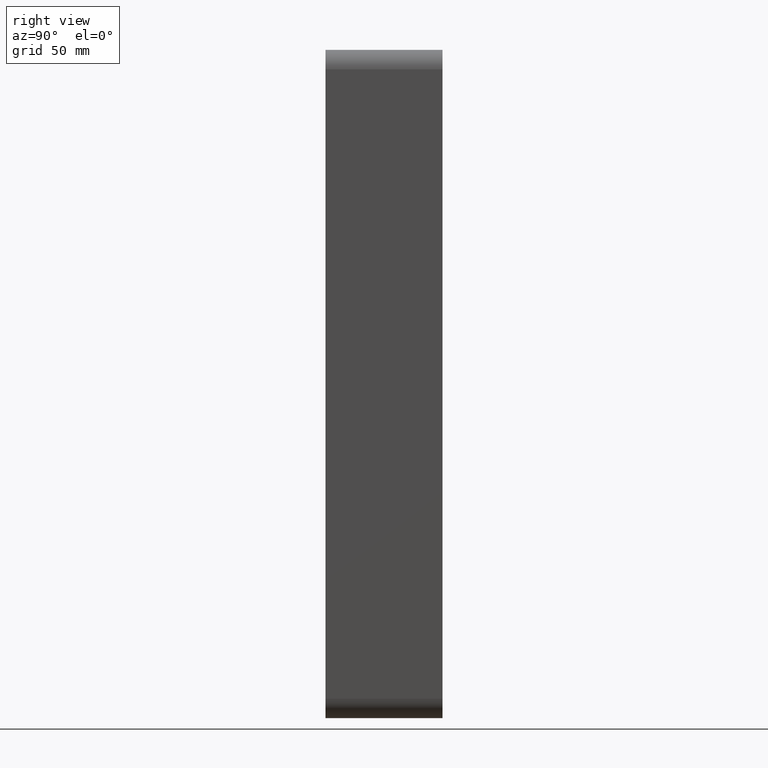
[diagram: clean part render]
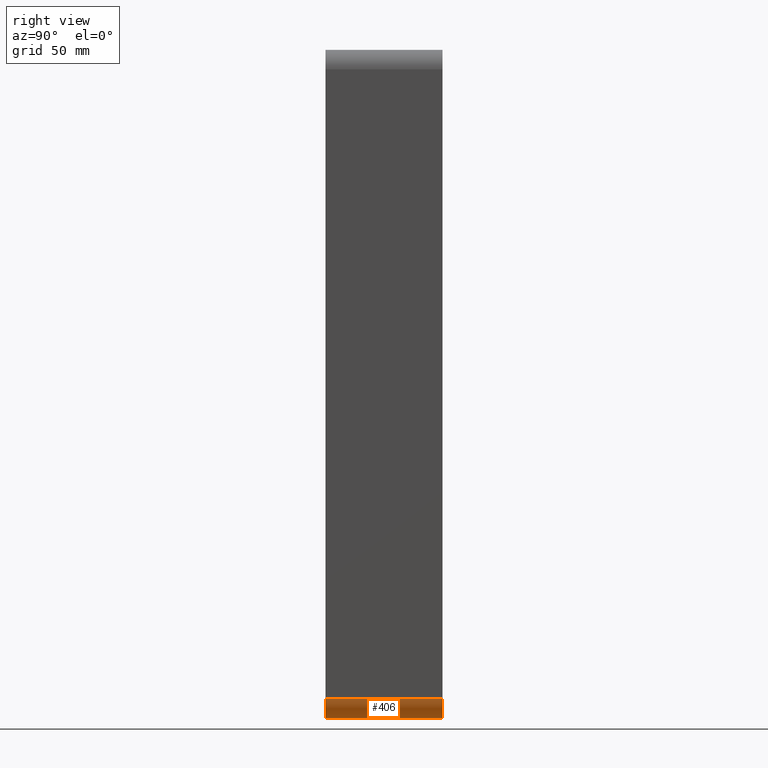
[diagram: same view with one face highlighted and labeled with its STEP entity id]
A machine part, right view. The second image highlights one B-rep face of the part: STEP entity #406.
In plain terms, the highlighted cylindrical surface (edge-blend (fillet) strip) has radius 10 mm, axis along (0, 1, 0).
Its self-contained STEP definition (entity closure, byte-faithful):
#365=CARTESIAN_POINT('',(60.249999999999993,0.0,-161.50000000000003));
#366=DIRECTION('',(0.0,1.0,0.0));
#367=DIRECTION('',(0.707106781186547,0.0,-0.707106781186547));
#368=AXIS2_PLACEMENT_3D('',#365,#366,#367);
#369=CYLINDRICAL_SURFACE('',#368,10.0);
#370=CARTESIAN_POINT('',(60.249999999999993,57.0,-171.50000000000003));
#371=VERTEX_POINT('',#370);
#372=CARTESIAN_POINT('',(70.25,57.0,-161.50000000000003));
#373=VERTEX_POINT('',#372);
#374=CARTESIAN_POINT('',(60.249999999999993,57.0,-161.50000000000003));
#375=DIRECTION('',(0.0,-1.0,0.0));
#376=DIRECTION('',(0.707106781186547,0.0,-0.707106781186547));
#377=AXIS2_PLACEMENT_3D('',#374,#375,#376);
#378=CIRCLE('',#377,9.999999999999998);
#379=EDGE_CURVE('',#371,#373,#378,.T.);
#380=ORIENTED_EDGE('',*,*,#379,.T.);
#381=CARTESIAN_POINT('',(70.25,-3.0,-161.50000000000003));
#382=VERTEX_POINT('',#381);
#383=CARTESIAN_POINT('',(70.25,57.0,-161.50000000000003));
#384=DIRECTION('',(0.0,-1.0,0.0));
#385=VECTOR('',#384,60.0);
#386=LINE('',#383,#385);
#387=EDGE_CURVE('',#373,#382,#386,.T.);
#388=ORIENTED_EDGE('',*,*,#387,.T.);
#389=CARTESIAN_POINT('',(60.249999999999993,-3.0,-171.50000000000003));
#390=VERTEX_POINT('',#389);
#391=CARTESIAN_POINT('',(60.249999999999993,-3.0,-161.50000000000003));
#392=DIRECTION('',(0.0,1.0,0.0));
#393=DIRECTION('',(0.707106781186547,0.0,-0.707106781186547));
#394=AXIS2_PLACEMENT_3D('',#391,#392,#393);
#395=CIRCLE('',#394,9.999999999999998);
#396=EDGE_CURVE('',#382,#390,#395,.T.);
#397=ORIENTED_EDGE('',*,*,#396,.T.);
#398=CARTESIAN_POINT('',(60.249999999999993,-3.0,-171.50000000000003));
#399=DIRECTION('',(0.0,1.0,0.0));
#400=VECTOR('',#399,60.0);
#401=LINE('',#398,#400);
#402=EDGE_CURVE('',#390,#371,#401,.T.);
#403=ORIENTED_EDGE('',*,*,#402,.T.);
#404=EDGE_LOOP('',(#380,#388,#397,#403));
#405=FACE_OUTER_BOUND('',#404,.T.);
#406=ADVANCED_FACE('',(#405),#369,.T.);